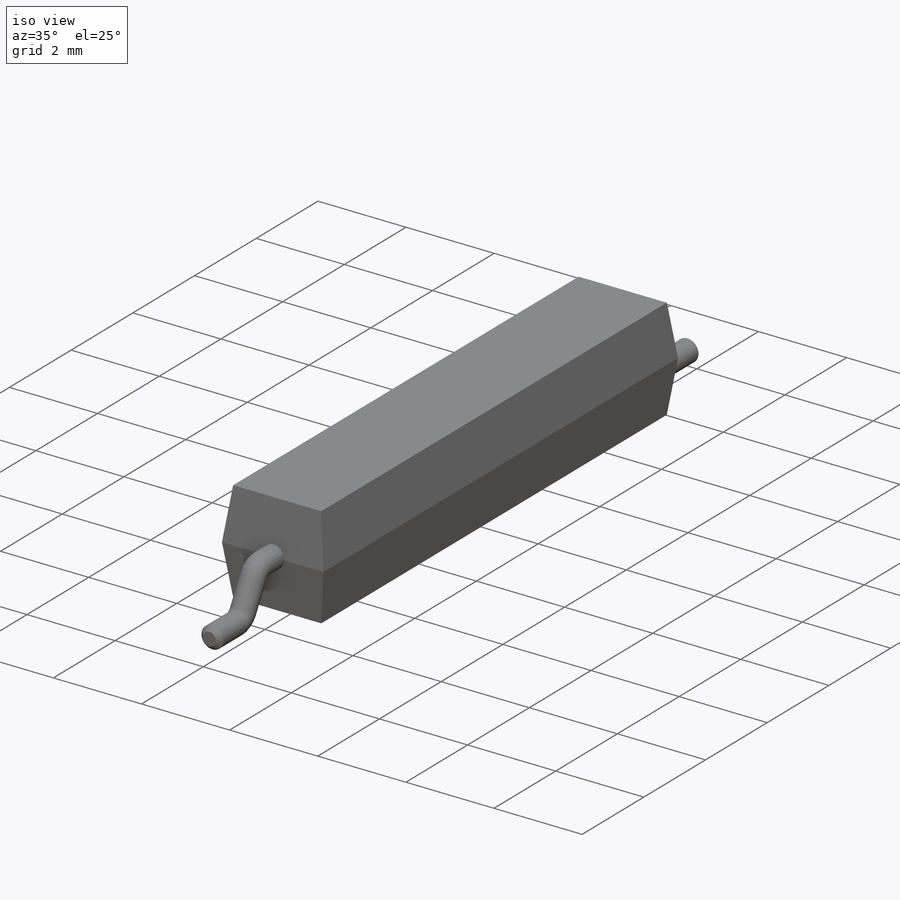
[diagram: iso view]
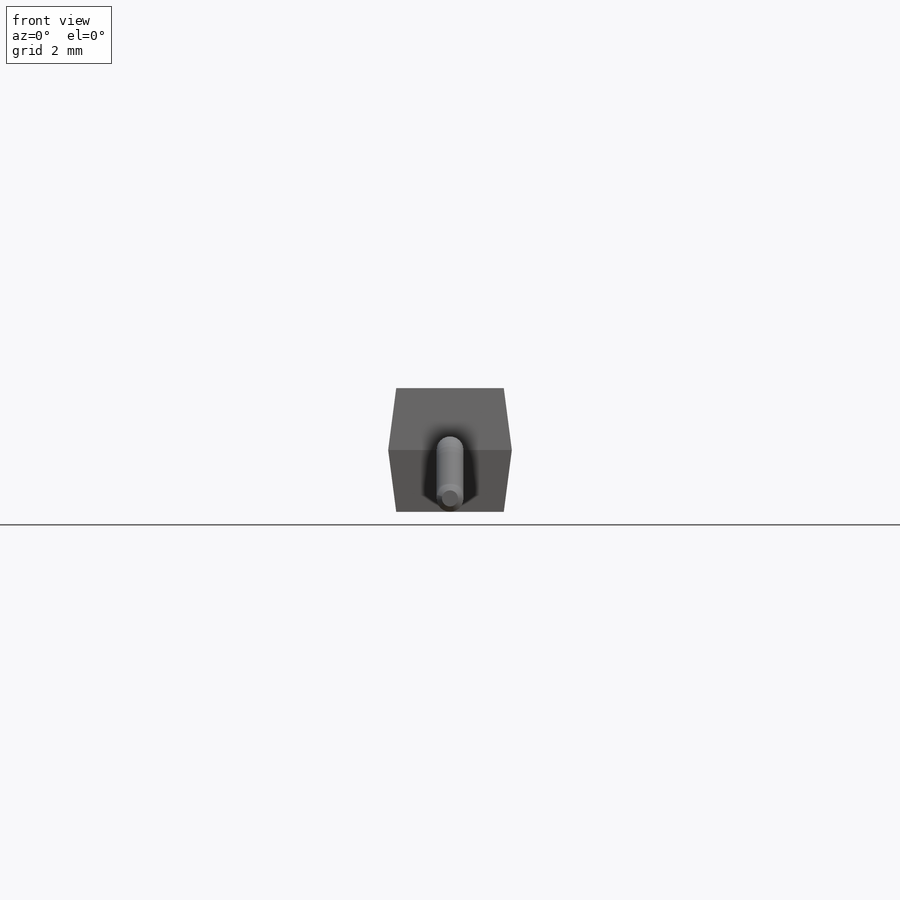
[diagram: front view]
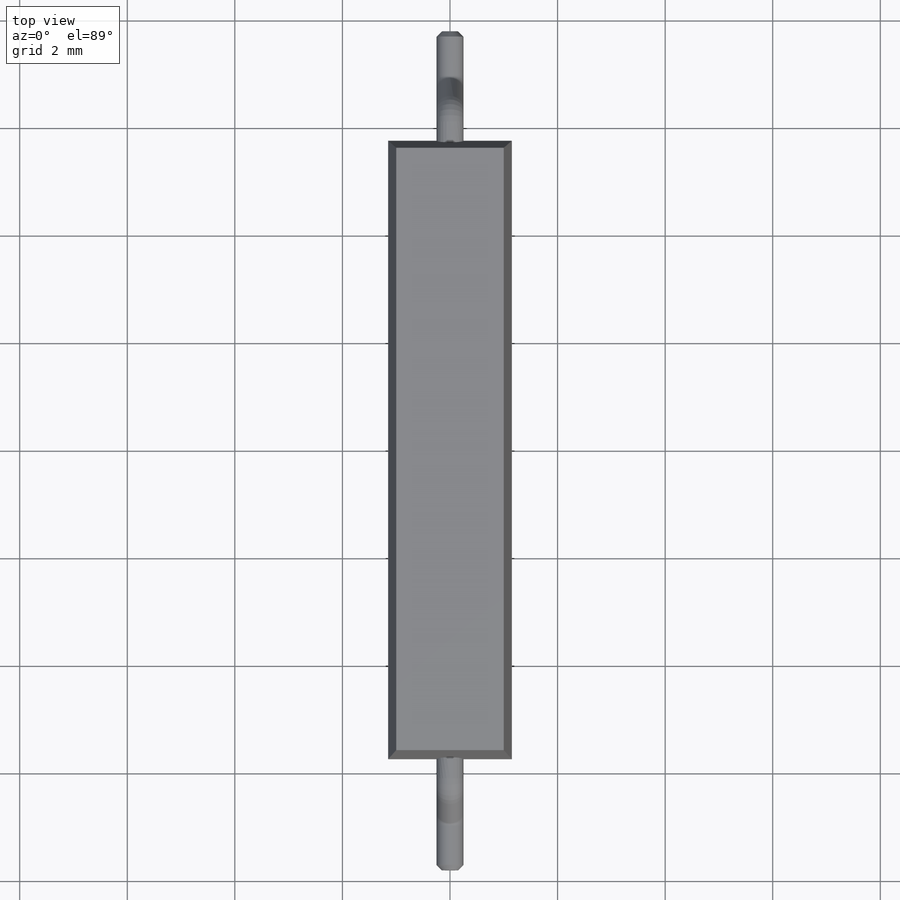
[diagram: top view]
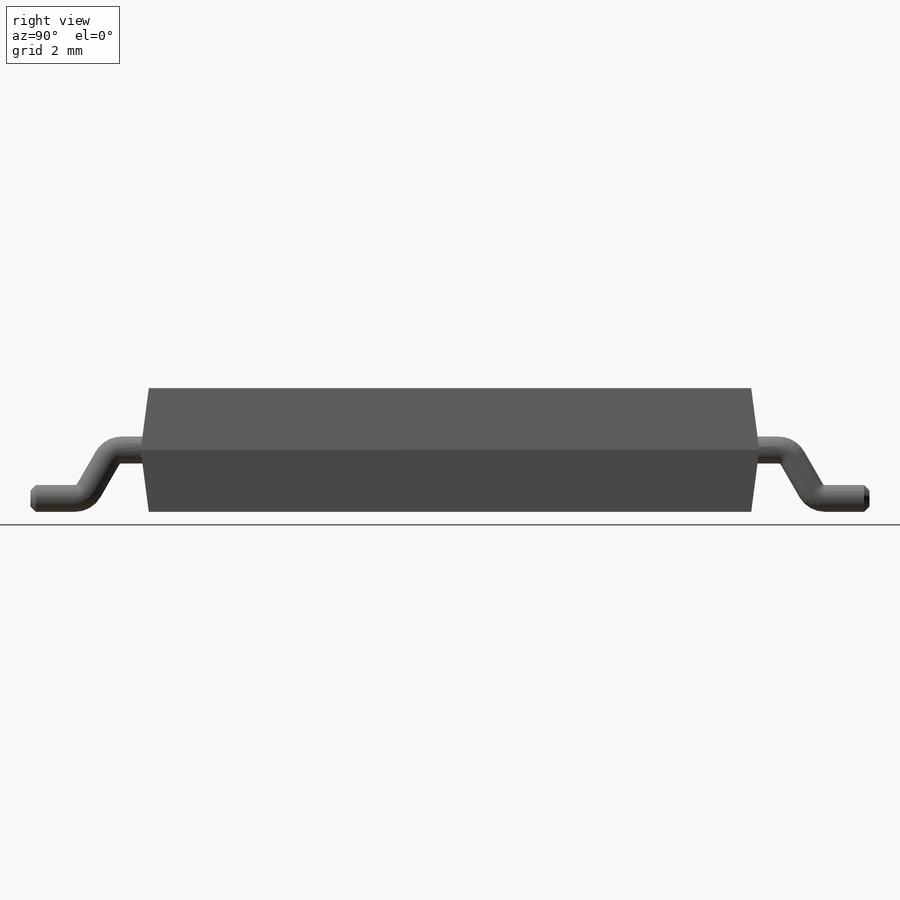
[diagram: right view]
SOLIDWORKS PART (.sldprt)
format: sldprt  version: not decoded by parser v0  size: 230,400 bytes
history: native  units: mm
features: sketch x4, material x1, extrude x1, cut_extrude x1, plane x1, sweep x1, mirror x1, chamfer x1 (+12 scaffold rows collapsed)
feature tree (23):
  scaffold x12  (default folders/planes/origin — collapsed)
  material  "Material <not specified>"
  sketch  "Sketch1"  dims[D1=2.3mm D2=2.3mm D3=2.0mm]
  extrude  "Boss-Extrude1"  Depth=11.5mm
  sketch  "Sketch2"  dims[D1=0.15mm D2=1.0mm]
  cut_extrude  "Cut-Extrude1"  Depth=11mm
  plane  "Plane1"  Offset=5mm
  sketch  "Sketch4"  dims[D1=0.5mm]
  sketch  "Sketch5"  dims[c1.D5=0.3mm c1.D1=7.8mm c1.D2=1.0mm c1.D3=~0.897746mm c2.D3=120.0deg c2.D4=~0.897746mm c3.D4=120.0deg c4.D4=0.25mm]
  sweep  "Sweep1"
  mirror  "Mirror1"
  chamfer  "Chamfer1"  Distance=0.1mm Angle=45deg
decode coverage: 7 of 9 modeling features carry decoded parameters
note: ~ marks probable driven/reference dimensions
note: suppression state not decoded; provenance and decode notes live in map.json
